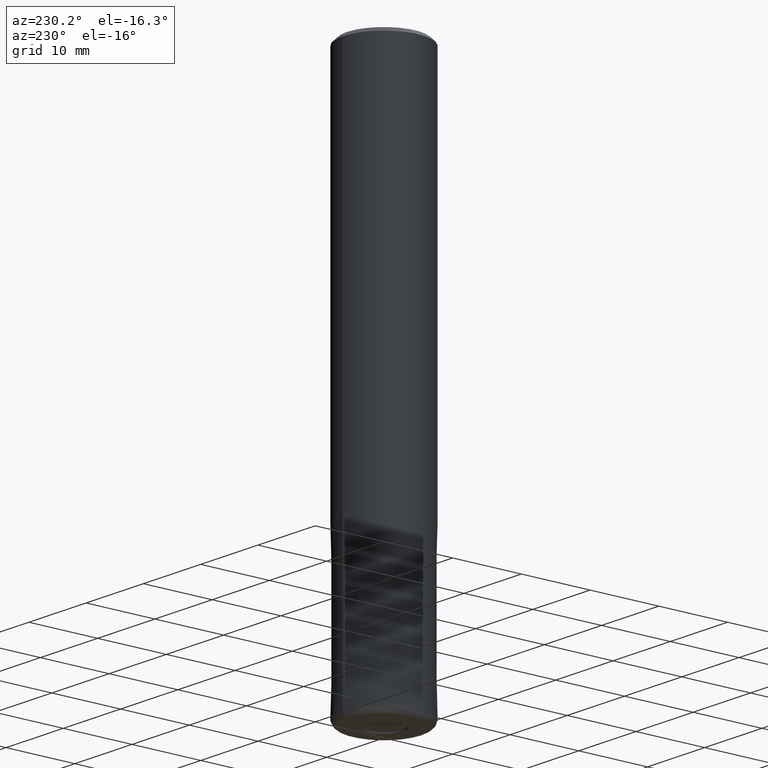
[diagram: clean part render]
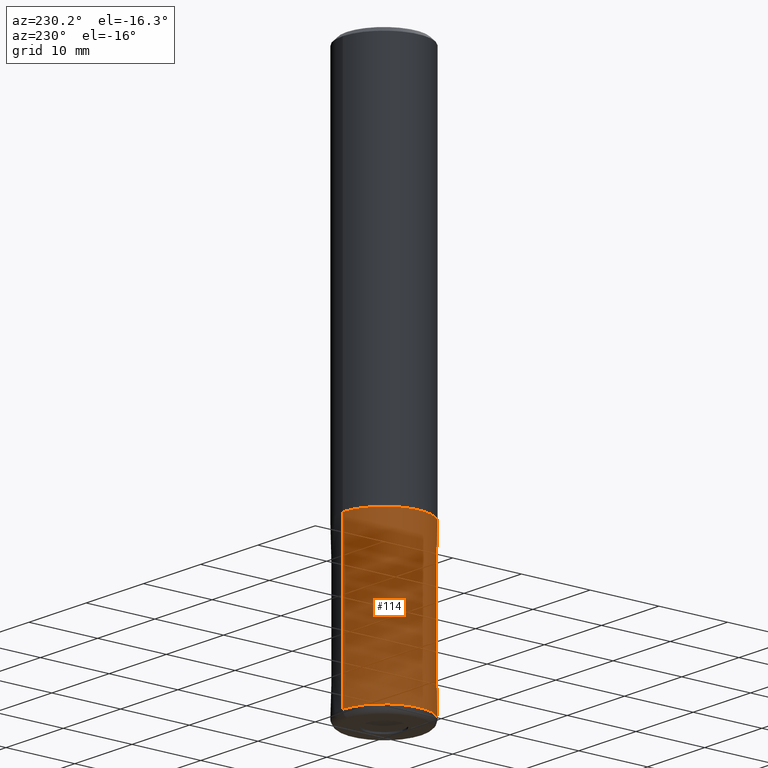
[diagram: same view with one face highlighted and labeled with its STEP entity id]
A machine part, auxiliary view. The second image highlights one B-rep face of the part: STEP entity #114.
In plain terms, the highlighted conical surface has half-angle 0 deg.
Its self-contained STEP definition (entity closure, byte-faithful):
#114=ADVANCED_FACE('',(#278),#279,.T.);
#130=VERTEX_POINT('',#295);
#146=VERTEX_POINT('',#314);
#184=EDGE_CURVE('',#130,#222,#355,.T.);
#214=EDGE_CURVE('',#146,#240,#392,.T.);
#222=VERTEX_POINT('',#400);
#226=EDGE_CURVE('',#222,#240,#404,.T.);
#238=EDGE_CURVE('',#146,#130,#417,.T.);
#240=VERTEX_POINT('',#419);
#278=FACE_OUTER_BOUND('',#454,.T.);
#279=CONICAL_SURFACE('',#455,5.99995,4.34782608691899E-006);
#295=CARTESIAN_POINT('',(7.34751566229888E-016,-5.9999,-56.0));
#314=CARTESIAN_POINT('',(7.34763812293426E-016,-6.0,-79.0));
#355=CIRCLE('',#549,5.9999);
#392=CIRCLE('',#598,6.0);
#400=CARTESIAN_POINT('',(0.0,5.9999,-56.0));
#404=LINE('',#613,#614);
#417=LINE('',#629,#630);
#419=CARTESIAN_POINT('',(0.0,6.0,-79.0));
#454=EDGE_LOOP('',(#669,#670,#671,#672));
#455=AXIS2_PLACEMENT_3D('',#673,#674,#675);
#549=AXIS2_PLACEMENT_3D('',#760,#761,#762);
#598=AXIS2_PLACEMENT_3D('',#821,#822,#823);
#613=CARTESIAN_POINT('',(-7.34757689261657E-016,5.99995,-67.5));
#614=VECTOR('',#830,1.0);
#629=CARTESIAN_POINT('',(7.34757689261657E-016,-5.99995,-67.5));
#630=VECTOR('',#841,1.0);
#669=ORIENTED_EDGE('',*,*,#226,.T.);
#670=ORIENTED_EDGE('',*,*,#214,.F.);
#671=ORIENTED_EDGE('',*,*,#238,.T.);
#672=ORIENTED_EDGE('',*,*,#184,.T.);
#673=CARTESIAN_POINT('',(0.0,0.0,-67.5));
#674=DIRECTION('',(0.0,-0.0,-1.0));
#675=DIRECTION('',(0.0,1.0,0.0));
#760=CARTESIAN_POINT('',(0.0,0.0,-56.0));
#761=DIRECTION('',(0.0,0.0,-1.0));
#762=DIRECTION('',(0.0,1.0,0.0));
#821=CARTESIAN_POINT('',(0.0,0.0,-79.0));
#822=DIRECTION('',(0.0,0.0,-1.0));
#823=DIRECTION('',(0.0,1.0,0.0));
#830=DIRECTION('',(-5.32437545133891E-022,4.34782608690529E-006,-0.999999999990548));
#841=DIRECTION('',(-5.32437545133891E-022,4.34782608690529E-006,0.999999999990548));